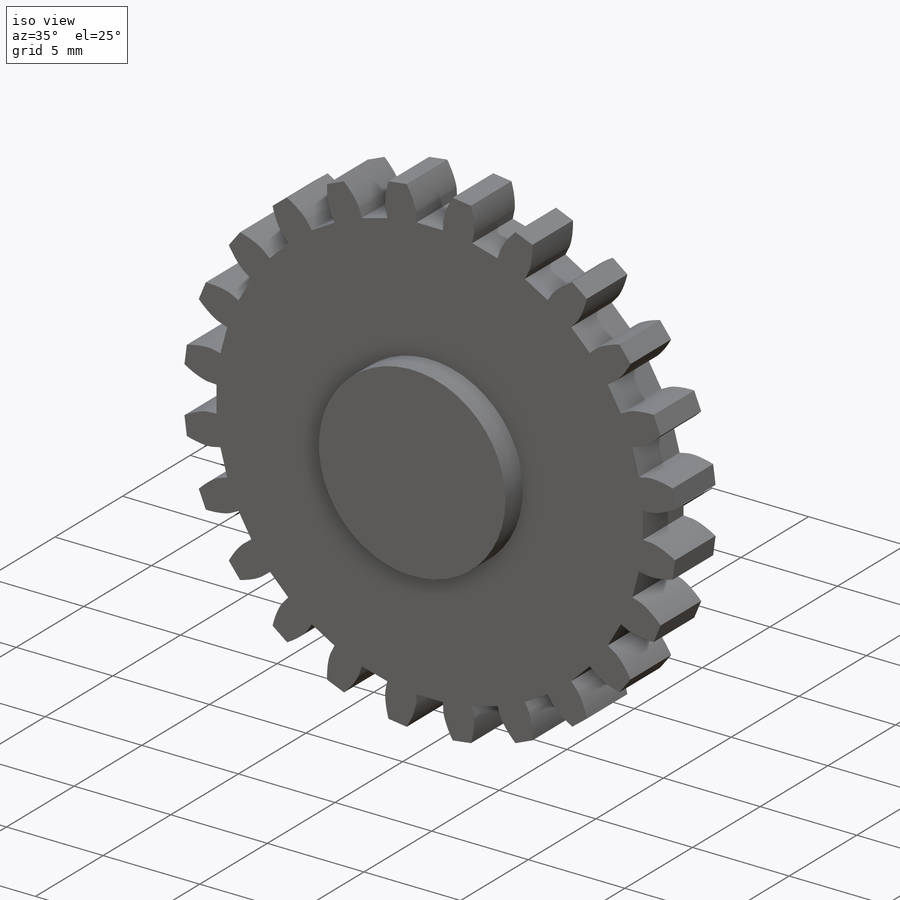
[diagram: iso view]
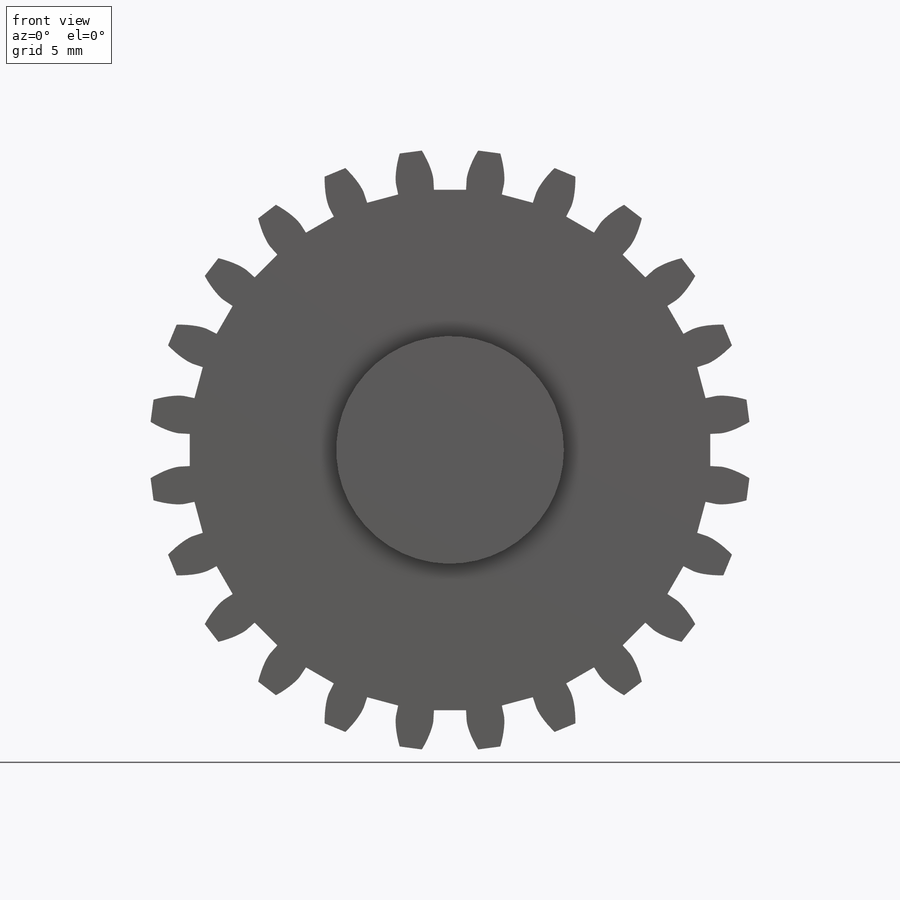
[diagram: front view]
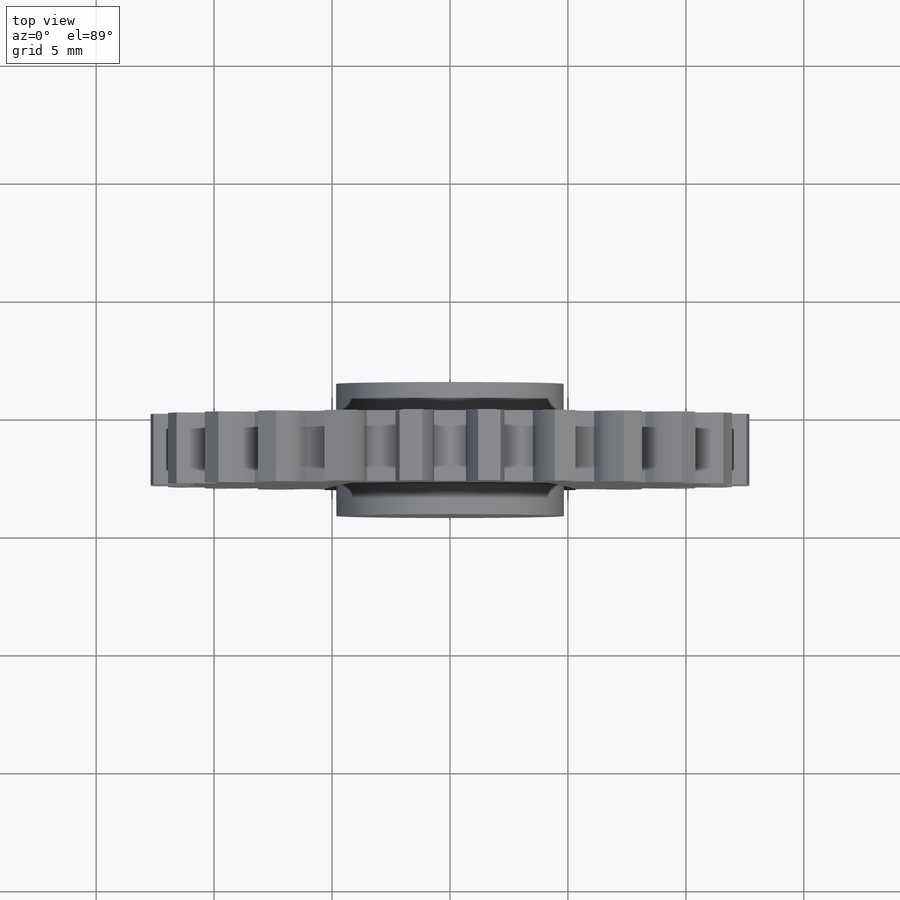
[diagram: top view]
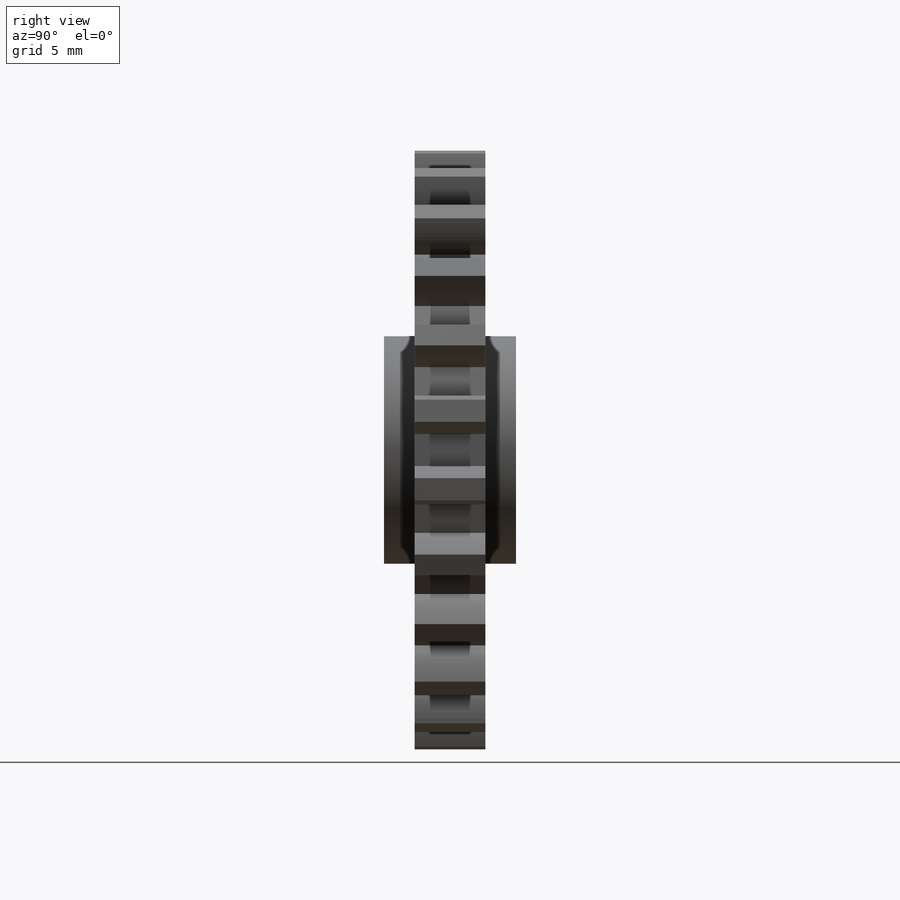
[diagram: right view]
SOLIDWORKS PART (.sldprt)
format: sldprt  version: not decoded by parser v0  size: 1,858,048 bytes
history: native  units: mm
features: sketch x5, cut_extrude x3, extrude x2, material x1 (+12 scaffold rows collapsed)
feature tree (23):
  scaffold x12  (default folders/planes/origin — collapsed)
  material  "ABS"
  sketch  "Model"
  extrude  "Main Gear Body"  Depth=3mm
  sketch  "Sketch2"  dims[D1=10.0mm]
  extrude  "Central Feature"  Depth=1.3mm
  sketch  "Sketch3"  dims[D1=0.05mm]
  cut_extrude  "Teeth Clearance"  [1 undecoded]
  sketch  "Sketch4"  dims[D1=0.175mm]
  cut_extrude  "Print Clearance - Top"  [1 undecoded]
  sketch  "Sketch6"
  cut_extrude  "Print Clearance - Bottom"  [1 undecoded]
decode coverage: 5 of 10 modeling features carry decoded parameters
note: 3 parameter values undecoded
summary: no parameter record found for 3 features
note: suppression state not decoded; provenance and decode notes live in map.json
